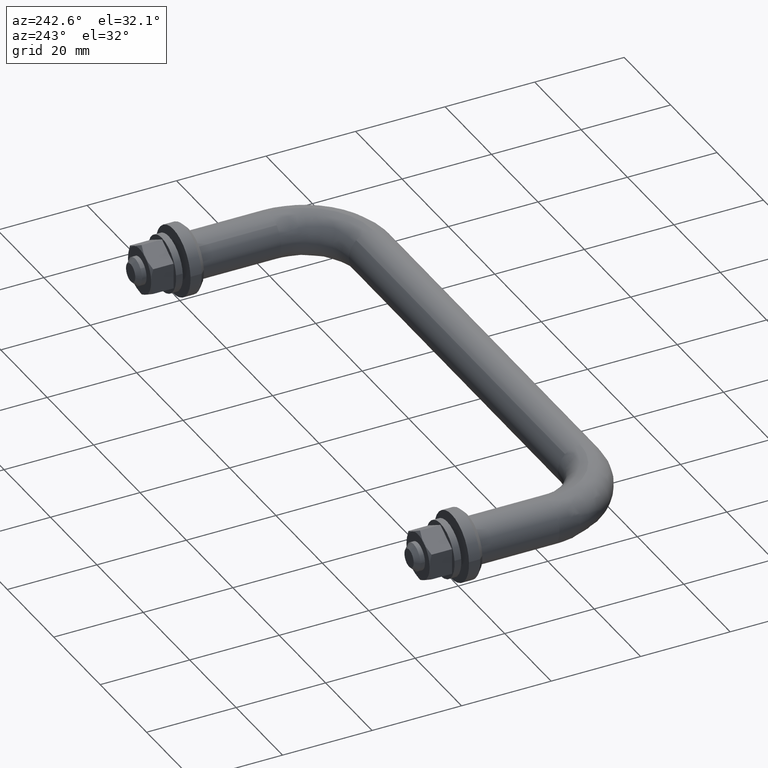
[diagram: clean part render]
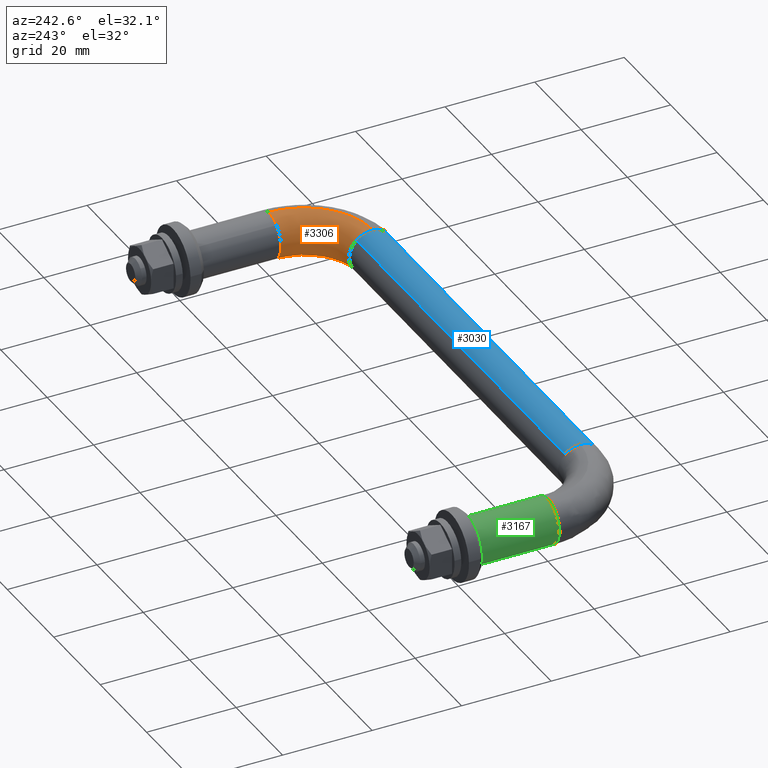
[diagram: same view with three faces highlighted in distinct colors, each labeled with its STEP entity id]
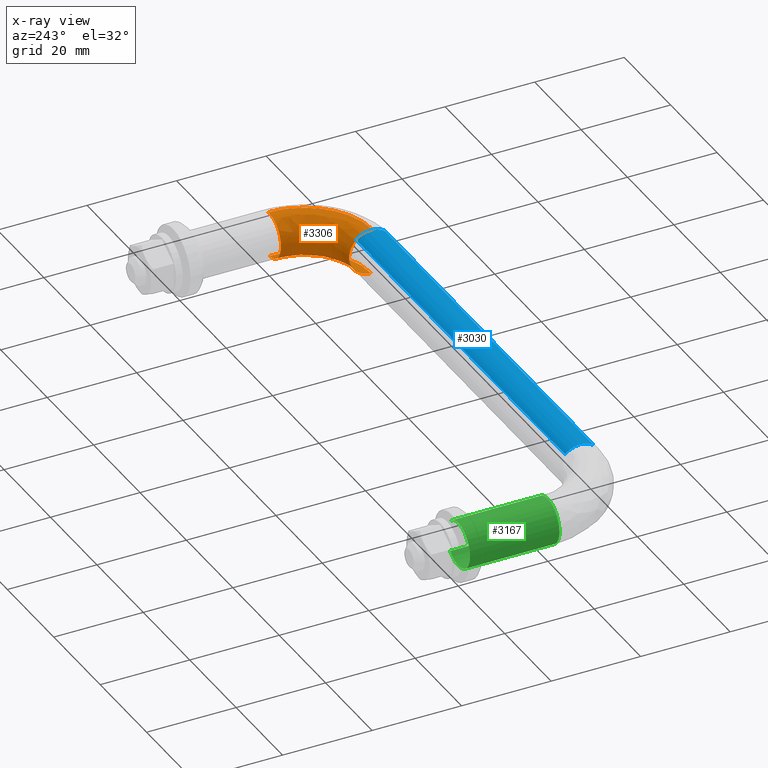
[diagram: x-ray of the same camera — body ghosted, the three highlighted faces saturated]
A machine part, auxiliary view with three faces highlighted in distinct colors.
The next image is the same camera in x-ray (body ghosted, the three faces saturated) — at least one of them is partly hidden behind the body in this view.
Their STEP definitions:

[orange] entity #3306 — the highlighted face is a freeform B-spline surface patch.
#2591=CARTESIAN_POINT('',(119.937169799536900,-20.000000000594721,-4.999605221005929));
#2592=VERTEX_POINT('',#2591);
#2610=CARTESIAN_POINT('',(115.0,-20.0,0.0));
#2611=VERTEX_POINT('',#2610);
#2612=CARTESIAN_POINT('',(115.0,-20.0,0.0));
#2613=CARTESIAN_POINT('',(114.999999999999990,-20.000000000000007,-4.937559647469620));
#2614=CARTESIAN_POINT('',(119.937169799536820,-20.000000000594721,-4.999605221005929));
#2622=(BOUNDED_CURVE()B_SPLINE_CURVE(2,(#2612,#2613,#2614),.UNSPECIFIED.,.F.,.U.)B_SPLINE_CURVE_WITH_KNOTS((3,3),(0.0,0.247784295848113),.UNSPECIFIED.)CURVE()GEOMETRIC_REPRESENTATION_ITEM()RATIONAL_B_SPLINE_CURVE((1.0,0.709702640070486,0.994854295474578))REPRESENTATION_ITEM(''));
#2623=EDGE_CURVE('',#2611,#2592,#2622,.T.);
#2625=CARTESIAN_POINT('',(116.887429168862700,-19.999999999999869,3.913042655165409));
#2626=VERTEX_POINT('',#2625);
#2627=CARTESIAN_POINT('',(116.887429168862600,-19.999999999999869,3.913042655165410));
#2628=CARTESIAN_POINT('',(114.999999999999990,-19.999999999999993,2.411715556397347));
#2629=CARTESIAN_POINT('',(115.0,-20.0,0.0));
#2637=(BOUNDED_CURVE()B_SPLINE_CURVE(2,(#2627,#2628,#2629),.UNSPECIFIED.,.F.,.U.)B_SPLINE_CURVE_WITH_KNOTS((3,3),(0.857863786403068,1.0),.UNSPECIFIED.)CURVE()GEOMETRIC_REPRESENTATION_ITEM()RATIONAL_B_SPLINE_CURVE((0.856305647871386,0.833477067558553,1.0))REPRESENTATION_ITEM(''));
#2638=EDGE_CURVE('',#2626,#2611,#2637,.T.);
#2752=CARTESIAN_POINT('',(120.348666261161990,-20.000000000619941,4.987828368972547));
#2753=VERTEX_POINT('',#2752);
#2754=CARTESIAN_POINT('',(120.348666261161990,-20.000000000619938,4.987828368972547));
#2755=CARTESIAN_POINT('',(120.174545582670320,-20.000000000000004,5.000000000000001));
#2756=CARTESIAN_POINT('',(120.0,-20.0,5.0));
#2757=CARTESIAN_POINT('',(118.253923518848110,-20.0,5.0));
#2758=CARTESIAN_POINT('',(116.887429168862600,-19.999999999999869,3.913042655165410));
#2766=(BOUNDED_CURVE()B_SPLINE_CURVE(2,(#2754,#2755,#2756,#2757,#2758),.UNSPECIFIED.,.F.,.U.)B_SPLINE_CURVE_WITH_KNOTS((3,2,3),(0.737833686308616,0.750000000000000,0.857863786403068),.UNSPECIFIED.)CURVE()GEOMETRIC_REPRESENTATION_ITEM()RATIONAL_B_SPLINE_CURVE((0.972879875907961,0.985746276887346,1.0,0.873629713627995,0.856305647871386))REPRESENTATION_ITEM(''));
#2767=EDGE_CURVE('',#2753,#2626,#2766,.T.);
#2897=CARTESIAN_POINT('',(105.0,-31.622051120767932,3.686388662266402));
#2898=VERTEX_POINT('',#2897);
#2904=CARTESIAN_POINT('',(105.0,-30.0,0.0));
#2905=VERTEX_POINT('',#2904);
#2906=CARTESIAN_POINT('',(104.999999999999990,-31.622051120767932,3.686388662266402));
#2907=CARTESIAN_POINT('',(104.999999999999990,-30.000000000000011,2.200054401981904));
#2908=CARTESIAN_POINT('',(105.0,-30.0,0.0));
#2916=(BOUNDED_CURVE()B_SPLINE_CURVE(2,(#2906,#2907,#2908),.UNSPECIFIED.,.F.,.U.)B_SPLINE_CURVE_WITH_KNOTS((3,3),(0.868415120677811,1.0),.UNSPECIFIED.)CURVE()GEOMETRIC_REPRESENTATION_ITEM()RATIONAL_B_SPLINE_CURVE((0.853959791750278,0.845838724592578,1.0))REPRESENTATION_ITEM(''));
#2917=EDGE_CURVE('',#2898,#2905,#2916,.T.);
#2919=CARTESIAN_POINT('',(105.000000127957610,-34.937169908600652,-4.999605222376536));
#2920=VERTEX_POINT('',#2919);
#2921=CARTESIAN_POINT('',(105.0,-30.0,0.0));
#2922=CARTESIAN_POINT('',(104.999999999999990,-30.000000000000007,-4.937559862907233));
#2923=CARTESIAN_POINT('',(105.000000127957590,-34.937169908600659,-4.999605222376536));
#2931=(BOUNDED_CURVE()B_SPLINE_CURVE(2,(#2921,#2922,#2923),.UNSPECIFIED.,.F.,.U.)B_SPLINE_CURVE_WITH_KNOTS((3,3),(0.0,0.247784303521010),.UNSPECIFIED.)CURVE()GEOMETRIC_REPRESENTATION_ITEM()RATIONAL_B_SPLINE_CURVE((1.0,0.709702631081128,0.994854313134611))REPRESENTATION_ITEM(''));
#2932=EDGE_CURVE('',#2905,#2920,#2931,.T.);
#2966=CARTESIAN_POINT('',(105.000000001064090,-35.348666263059869,4.987828368839876));
#2967=VERTEX_POINT('',#2966);
#2981=CARTESIAN_POINT('',(105.000000001064070,-35.348666263059869,4.987828368839876));
#2982=CARTESIAN_POINT('',(105.000000000000010,-35.174545584575199,5.000000000000001));
#2983=CARTESIAN_POINT('',(105.0,-35.0,5.0));
#2984=CARTESIAN_POINT('',(104.999999999999990,-33.055608026206457,5.0));
#2985=CARTESIAN_POINT('',(104.999999999999990,-31.622051120767932,3.686388662266402));
#2993=(BOUNDED_CURVE()B_SPLINE_CURVE(2,(#2981,#2982,#2983,#2984,#2985),.UNSPECIFIED.,.F.,.U.)B_SPLINE_CURVE_WITH_KNOTS((3,2,3),(0.737833686177734,0.750000000000000,0.868415120677811),.UNSPECIFIED.)CURVE()GEOMETRIC_REPRESENTATION_ITEM()RATIONAL_B_SPLINE_CURVE((0.972879875631133,0.985746276734008,1.0,0.861268056593970,0.853959791750278))REPRESENTATION_ITEM(''));
#2994=EDGE_CURVE('',#2967,#2898,#2993,.T.);
#3243=CARTESIAN_POINT('',(103.932698318354890,-35.311512484592718,4.987828388444838));
#3244=CARTESIAN_POINT('',(121.538757938295280,-36.538757478084690,4.987828388444835));
#3245=CARTESIAN_POINT('',(120.311512454893800,-18.932697892293891,4.987828388444838));
#3246=CARTESIAN_POINT('',(103.942624695050480,-35.169108660711110,4.997807049440652));
#3247=CARTESIAN_POINT('',(121.384940190046290,-36.384939734115918,4.997807049440650));
#3248=CARTESIAN_POINT('',(120.169108631288340,-18.942624272952049,4.997807049440652));
#3249=CARTESIAN_POINT('',(103.952574509055340,-35.026368605134799,4.999605221019078));
#3250=CARTESIAN_POINT('',(121.230759260523510,-36.230758808883344,4.999605221019080));
#3251=CARTESIAN_POINT('',(120.026368575988910,-18.952574090928810,4.999605221019078));
#3252=CARTESIAN_POINT('',(104.300232544353260,-30.038865596961873,5.062435420435842));
#3253=CARTESIAN_POINT('',(115.843498854231530,-30.843498552498289,5.062435420435842));
#3254=CARTESIAN_POINT('',(115.038865577490030,-19.300232265009921,5.062435420435843));
#3255=CARTESIAN_POINT('',(104.304601574050790,-29.976187486442718,0.062830199416764));
#3256=CARTESIAN_POINT('',(115.775796979648650,-30.775796679799292,0.062830199416764));
#3257=CARTESIAN_POINT('',(114.976187467092470,-19.304601296451551,0.062830199416764));
#3258=CARTESIAN_POINT('',(104.308970603748340,-29.913509375923553,-4.936775021602313));
#3259=CARTESIAN_POINT('',(115.708095105065770,-30.708094807100284,-4.936775021602313));
#3260=CARTESIAN_POINT('',(114.913509356694850,-19.308970327893189,-4.936775021602315));
#3261=CARTESIAN_POINT('',(103.961312568450420,-34.901012384096489,-4.999605221019078));
#3262=CARTESIAN_POINT('',(121.095355511357720,-36.095355063485357,-4.999605221019080));
#3263=CARTESIAN_POINT('',(119.901012355193730,-18.961312153812077,-4.999605221019078));
#3271=(BOUNDED_SURFACE()B_SPLINE_SURFACE(2,2,((#3243,#3246,#3249,#3252,#3255,#3258,#3261),(#3244,#3247,#3250,#3253,#3256,#3259,#3262),(#3245,#3248,#3251,#3254,#3257,#3260,#3263)),.UNSPECIFIED.,.F.,.F.,.U.)B_SPLINE_SURFACE_WITH_KNOTS((3,3),(3,2,2,3),(0.0,27.971008545891149),(0.0,0.331370533878608,8.615641781340516,16.899913028802430),.UNSPECIFIED.)GEOMETRIC_REPRESENTATION_ITEM()RATIONAL_B_SPLINE_SURFACE(((0.895729732449210,0.905606490046838,0.916342095240933,0.647951709431553,0.916342095240933,0.647951709431553,0.916342095240933),(0.587800221482116,0.594281596491894,0.601326568744382,0.425202094466791,0.601326568744382,0.425202094466791,0.601326568744382),(0.895729743804760,0.905606501527600,0.916342106857795,0.647951717645915,0.916342106857795,0.647951717645915,0.916342106857795)))REPRESENTATION_ITEM('')SURFACE());
#3272=ORIENTED_EDGE('',*,*,#2767,.T.);
#3273=ORIENTED_EDGE('',*,*,#2638,.T.);
#3274=ORIENTED_EDGE('',*,*,#2623,.T.);
#3275=CARTESIAN_POINT('',(105.000000127957620,-34.937169908600652,-4.999605222376536));
#3276=CARTESIAN_POINT('',(119.937169799393760,-34.937169544668009,-4.999605221019078));
#3277=CARTESIAN_POINT('',(119.937169799536920,-20.000000000594724,-4.999605221005929));
#3285=(BOUNDED_CURVE()B_SPLINE_CURVE(2,(#3275,#3276,#3277),.UNSPECIFIED.,.F.,.U.)B_SPLINE_CURVE_WITH_KNOTS((3,3),(-1.734750773855825,-0.265249208424343),.UNSPECIFIED.)CURVE()GEOMETRIC_REPRESENTATION_ITEM()RATIONAL_B_SPLINE_CURVE((0.889029717267328,0.628638949386523,0.889029723547118))REPRESENTATION_ITEM(''));
#3286=EDGE_CURVE('',#2920,#2592,#3285,.T.);
#3287=ORIENTED_EDGE('',*,*,#3286,.F.);
#3288=ORIENTED_EDGE('',*,*,#2932,.F.);
#3289=ORIENTED_EDGE('',*,*,#2917,.F.);
#3290=ORIENTED_EDGE('',*,*,#2994,.F.);
#3291=CARTESIAN_POINT('',(105.000000001064090,-35.348666263059876,4.987828368839876));
#3292=CARTESIAN_POINT('',(120.348666256637300,-35.348666255749016,4.987828369202159));
#3293=CARTESIAN_POINT('',(120.348666261161970,-20.000000000619941,4.987828368972548));
#3301=(BOUNDED_CURVE()B_SPLINE_CURVE(2,(#3291,#3292,#3293),.UNSPECIFIED.,.F.,.U.)B_SPLINE_CURVE_WITH_KNOTS((3,3),(-1.734750791514324,-0.265249208425538),.UNSPECIFIED.)CURVE()GEOMETRIC_REPRESENTATION_ITEM()RATIONAL_B_SPLINE_CURVE((0.869031711825349,0.614498216572645,0.869031711846182))REPRESENTATION_ITEM(''));
#3302=EDGE_CURVE('',#2967,#2753,#3301,.T.);
#3303=ORIENTED_EDGE('',*,*,#3302,.T.);
#3304=EDGE_LOOP('',(#3272,#3273,#3274,#3287,#3288,#3289,#3290,#3303));
#3305=FACE_OUTER_BOUND('',#3304,.T.);
#3306=ADVANCED_FACE('',(#3305),#3271,.T.);

[blue] entity #3030 — the highlighted face is a freeform B-spline surface patch.
#2813=CARTESIAN_POINT('',(105.000000000448300,-38.040222707736262,3.969514564947689));
#2814=VERTEX_POINT('',#2813);
#2828=CARTESIAN_POINT('',(15.0,-38.040222708103272,3.969514565426509));
#2829=VERTEX_POINT('',#2828);
#2830=CARTESIAN_POINT('',(15.0,-38.040222708103272,3.969514565426509));
#2831=CARTESIAN_POINT('',(105.000000000448300,-38.040222707736262,3.969514564947689));
#2832=QUASI_UNIFORM_CURVE('',1,(#2830,#2831),.UNSPECIFIED.,.F.,.U.);
#2833=EDGE_CURVE('',#2829,#2814,#2832,.T.);
#2882=CARTESIAN_POINT('',(14.999999999824469,-31.622050203416730,3.686387821537513));
#2883=VERTEX_POINT('',#2882);
#2897=CARTESIAN_POINT('',(105.0,-31.622051120767932,3.686388662266402));
#2898=VERTEX_POINT('',#2897);
#2899=CARTESIAN_POINT('',(14.999999999824469,-31.622050203416730,3.686387821537513));
#2900=CARTESIAN_POINT('',(105.0,-31.622051120767932,3.686388662266402));
#2901=QUASI_UNIFORM_CURVE('',1,(#2899,#2900),.UNSPECIFIED.,.F.,.U.);
#2902=EDGE_CURVE('',#2883,#2898,#2901,.T.);
#2952=CARTESIAN_POINT('',(12.749999996253440,-31.622048961921699,3.686386684050619));
#2953=CARTESIAN_POINT('',(12.749999996253441,-34.712458498676909,6.518225283060159));
#2954=CARTESIAN_POINT('',(12.749999996253447,-38.040222708102142,3.969514565427370));
#2955=CARTESIAN_POINT('',(107.306250131250200,-31.622048961921688,3.686386684050619));
#2956=CARTESIAN_POINT('',(107.306250131250220,-34.712458498676895,6.518225283060159));
#2957=CARTESIAN_POINT('',(107.306250131250180,-38.040222708102128,3.969514565427370));
#2965=(BOUNDED_SURFACE()B_SPLINE_SURFACE(2,1,((#2952,#2955),(#2953,#2956),(#2954,#2957)),.UNSPECIFIED.,.F.,.F.,.U.)B_SPLINE_SURFACE_WITH_KNOTS((3,3),(2,2),(0.0,7.272191661774056),(0.0,94.556250134996802),.UNSPECIFIED.)GEOMETRIC_REPRESENTATION_ITEM()RATIONAL_B_SPLINE_SURFACE(((1.0,1.0),(0.742253967444162,0.742253967444162),(0.938140952186599,0.938140952186599)))REPRESENTATION_ITEM('')SURFACE());
#2966=CARTESIAN_POINT('',(105.000000001064090,-35.348666263059869,4.987828368839876));
#2967=VERTEX_POINT('',#2966);
#2968=CARTESIAN_POINT('',(105.000000000448340,-38.040222707736262,3.969514564947690));
#2969=CARTESIAN_POINT('',(105.000000000721220,-36.847439022908283,4.883059025046389));
#2970=CARTESIAN_POINT('',(105.000000001064140,-35.348666263059862,4.987828368839876));
#2978=(BOUNDED_CURVE()B_SPLINE_CURVE(2,(#2968,#2969,#2970),.UNSPECIFIED.,.F.,.U.)B_SPLINE_CURVE_WITH_KNOTS((3,3),(0.644916377166534,0.737833686177733),.UNSPECIFIED.)CURVE()GEOMETRIC_REPRESENTATION_ITEM()RATIONAL_B_SPLINE_CURVE((0.857271138856580,0.874615817626166,0.972879875631132))REPRESENTATION_ITEM(''));
#2979=EDGE_CURVE('',#2814,#2967,#2978,.T.);
#2980=ORIENTED_EDGE('',*,*,#2979,.T.);
#2981=CARTESIAN_POINT('',(105.000000001064070,-35.348666263059869,4.987828368839876));
#2982=CARTESIAN_POINT('',(105.000000000000010,-35.174545584575199,5.000000000000001));
#2983=CARTESIAN_POINT('',(105.0,-35.0,5.0));
#2984=CARTESIAN_POINT('',(104.999999999999990,-33.055608026206457,5.0));
#2985=CARTESIAN_POINT('',(104.999999999999990,-31.622051120767932,3.686388662266402));
#2993=(BOUNDED_CURVE()B_SPLINE_CURVE(2,(#2981,#2982,#2983,#2984,#2985),.UNSPECIFIED.,.F.,.U.)B_SPLINE_CURVE_WITH_KNOTS((3,2,3),(0.737833686177734,0.750000000000000,0.868415120677811),.UNSPECIFIED.)CURVE()GEOMETRIC_REPRESENTATION_ITEM()RATIONAL_B_SPLINE_CURVE((0.972879875631133,0.985746276734008,1.0,0.861268056593970,0.853959791750278))REPRESENTATION_ITEM(''));
#2994=EDGE_CURVE('',#2967,#2898,#2993,.T.);
#2995=ORIENTED_EDGE('',*,*,#2994,.T.);
#2996=ORIENTED_EDGE('',*,*,#2902,.F.);
#2997=CARTESIAN_POINT('',(14.999999999465739,-34.937169799687780,4.999605221007827));
#2998=VERTEX_POINT('',#2997);
#2999=CARTESIAN_POINT('',(14.999999999465743,-34.937169799687780,4.999605221007827));
#3000=CARTESIAN_POINT('',(14.999999999672221,-33.029006949407197,4.975625276488079));
#3001=CARTESIAN_POINT('',(14.999999999824468,-31.622050203416741,3.686387821537513));
#3009=(BOUNDED_CURVE()B_SPLINE_CURVE(2,(#2999,#3000,#3001),.UNSPECIFIED.,.F.,.U.)B_SPLINE_CURVE_WITH_KNOTS((3,3),(0.752215704141269,0.868415158253308),.UNSPECIFIED.)CURVE()GEOMETRIC_REPRESENTATION_ITEM()RATIONAL_B_SPLINE_CURVE((0.994854295499016,0.861131266012613,0.853959787112173))REPRESENTATION_ITEM(''));
#3010=EDGE_CURVE('',#2998,#2883,#3009,.T.);
#3011=ORIENTED_EDGE('',*,*,#3010,.F.);
#3012=CARTESIAN_POINT('',(15.000000000000004,-38.040222708103272,3.969514565426509));
#3013=CARTESIAN_POINT('',(15.0,-36.694753203157383,5.0));
#3014=CARTESIAN_POINT('',(15.0,-35.0,5.0));
#3015=CARTESIAN_POINT('',(14.999999999999998,-34.968583659144976,5.0));
#3016=CARTESIAN_POINT('',(14.999999999465739,-34.937169799687780,4.999605221007827));
#3024=(BOUNDED_CURVE()B_SPLINE_CURVE(2,(#3012,#3013,#3014,#3015,#3016),.UNSPECIFIED.,.F.,.U.)B_SPLINE_CURVE_WITH_KNOTS((3,2,3),(0.644916377221878,0.750000000000000,0.752215704141270),.UNSPECIFIED.)CURVE()GEOMETRIC_REPRESENTATION_ITEM()RATIONAL_B_SPLINE_CURVE((0.857271138877242,0.876886877919749,1.0,0.997404141128501,0.994854295499015))REPRESENTATION_ITEM(''));
#3025=EDGE_CURVE('',#2829,#2998,#3024,.T.);
#3026=ORIENTED_EDGE('',*,*,#3025,.F.);
#3027=ORIENTED_EDGE('',*,*,#2833,.T.);
#3028=EDGE_LOOP('',(#2980,#2995,#2996,#3011,#3026,#3027));
#3029=FACE_OUTER_BOUND('',#3028,.T.);
#3030=ADVANCED_FACE('',(#3029),#2965,.T.);

[green] entity #3167 — the highlighted face is a freeform B-spline surface patch.
#3031=CARTESIAN_POINT('',(3.504546321499253,0.500000000023292,3.566252245770907));
#3032=CARTESIAN_POINT('',(-0.061705924271653,0.500000000023292,7.070798567270160));
#3033=CARTESIAN_POINT('',(-3.566252245770907,0.500000000023291,3.504546321499253));
#3034=CARTESIAN_POINT('',(-7.070798567270160,0.500000000023291,-0.061705924271653));
#3035=CARTESIAN_POINT('',(-3.504546321499253,0.500000000023291,-3.566252245770907));
#3036=CARTESIAN_POINT('',(0.061705924271653,0.500000000023292,-7.070798567270160));
#3037=CARTESIAN_POINT('',(3.566252245770907,0.500000000023292,-3.504546321499253));
#3038=CARTESIAN_POINT('',(3.504546321499256,-20.512500000955502,3.566252245770907));
#3039=CARTESIAN_POINT('',(-0.061705924271651,-20.512500000955491,7.070798567270160));
#3040=CARTESIAN_POINT('',(-3.566252245770904,-20.512500000955502,3.504546321499253));
#3041=CARTESIAN_POINT('',(-7.070798567270158,-20.512500000955491,-0.061705924271653));
#3042=CARTESIAN_POINT('',(-3.504546321499251,-20.512500000955502,-3.566252245770907));
#3043=CARTESIAN_POINT('',(0.061705924271656,-20.512500000955491,-7.070798567270160));
#3044=CARTESIAN_POINT('',(3.566252245770909,-20.512500000955502,-3.504546321499253));
#3052=(BOUNDED_SURFACE()B_SPLINE_SURFACE(2,1,((#3031,#3038),(#3032,#3039),(#3033,#3040),(#3034,#3041),(#3035,#3042),(#3036,#3043),(#3037,#3044)),.UNSPECIFIED.,.F.,.F.,.U.)B_SPLINE_SURFACE_WITH_KNOTS((3,2,2,3),(2,2),(0.0,8.284271247461899,16.568542494923800,24.852813742385688),(0.0,21.012500000978790),.UNSPECIFIED.)GEOMETRIC_REPRESENTATION_ITEM()RATIONAL_B_SPLINE_SURFACE(((1.0,1.0),(0.707106781186548,0.707106781186548),(1.0,1.0),(0.707106781186548,0.707106781186548),(1.0,1.0),(0.707106781186548,0.707106781186548),(1.0,1.0)))REPRESENTATION_ITEM('')SURFACE());
#3053=CARTESIAN_POINT('',(0.062830199724828,-19.999999999986880,4.999605221015209));
#3054=VERTEX_POINT('',#3053);
#3055=CARTESIAN_POINT('',(3.504545881485945,-19.999999999996021,3.566252678125415));
#3056=VERTEX_POINT('',#3055);
#3057=CARTESIAN_POINT('',(0.062830199724828,-19.999999999986873,4.999605221015209));
#3058=CARTESIAN_POINT('',(2.071644357743148,-19.999999999992216,4.974360388713899));
#3059=CARTESIAN_POINT('',(3.504545881485946,-19.999999999996025,3.566252678125415));
#3067=(BOUNDED_CURVE()B_SPLINE_CURVE(2,(#3057,#3058,#3059),.UNSPECIFIED.,.F.,.U.)B_SPLINE_CURVE_WITH_KNOTS((3,3),(0.752215704099945,0.873683205178172),.UNSPECIFIED.)CURVE()GEOMETRIC_REPRESENTATION_ITEM()RATIONAL_B_SPLINE_CURVE((0.994854295594130,0.855068765981151,0.853569642170475))REPRESENTATION_ITEM(''));
#3068=EDGE_CURVE('',#3054,#3056,#3067,.T.);
#3069=ORIENTED_EDGE('',*,*,#3068,.T.);
#3070=CARTESIAN_POINT('',(3.504545999161051,5.551115E-017,3.566252562531720));
#3071=VERTEX_POINT('',#3070);
#3072=CARTESIAN_POINT('',(3.504545999161051,5.551115E-017,3.566252562531720));
#3073=CARTESIAN_POINT('',(3.504545881485945,-19.999999999996021,3.566252678125415));
#3074=QUASI_UNIFORM_CURVE('',1,(#3072,#3073),.UNSPECIFIED.,.F.,.U.);
#3075=EDGE_CURVE('',#3071,#3056,#3074,.T.);
#3076=ORIENTED_EDGE('',*,*,#3075,.F.);
#3077=CARTESIAN_POINT('',(-5.0,0.0,0.0));
#3078=VERTEX_POINT('',#3077);
#3079=CARTESIAN_POINT('',(-5.0,0.0,0.0));
#3080=CARTESIAN_POINT('',(-5.000000000000001,0.0,5.000000000000001));
#3081=CARTESIAN_POINT('',(0.0,0.0,5.0));
#3082=CARTESIAN_POINT('',(2.045553479570108,0.0,5.000000000000001));
#3083=CARTESIAN_POINT('',(3.504545999161051,5.551115E-017,3.566252562531720));
#3091=(BOUNDED_CURVE()B_SPLINE_CURVE(2,(#3079,#3080,#3081,#3082,#3083),.UNSPECIFIED.,.F.,.U.)B_SPLINE_CURVE_WITH_KNOTS((3,2,3),(0.500000000000000,0.750000000000000,0.873683215132095),.UNSPECIFIED.)CURVE()GEOMETRIC_REPRESENTATION_ITEM()RATIONAL_B_SPLINE_CURVE((1.0,0.707106781186548,1.0,0.855096100027056,0.853569641924778))REPRESENTATION_ITEM(''));
#3092=EDGE_CURVE('',#3078,#3071,#3091,.T.);
#3093=ORIENTED_EDGE('',*,*,#3092,.F.);
#3094=CARTESIAN_POINT('',(3.566252367963553,5.551115E-017,-3.504546197155106));
#3095=VERTEX_POINT('',#3094);
#3096=CARTESIAN_POINT('',(3.566252367963553,5.551115E-017,-3.504546197155106));
#3097=CARTESIAN_POINT('',(2.096674213781681,0.0,-5.0));
#3098=CARTESIAN_POINT('',(0.0,0.0,-5.0));
#3099=CARTESIAN_POINT('',(-5.000000000000001,0.0,-5.000000000000001));
#3100=CARTESIAN_POINT('',(-5.0,0.0,0.0));
#3108=(BOUNDED_CURVE()B_SPLINE_CURVE(2,(#3096,#3097,#3098,#3099,#3100),.UNSPECIFIED.,.F.,.U.)B_SPLINE_CURVE_WITH_KNOTS((3,2,3),(0.123683231886692,0.250000000000000,0.500000000000000),.UNSPECIFIED.)CURVE()GEOMETRIC_REPRESENTATION_ITEM()RATIONAL_B_SPLINE_CURVE((0.853569641511221,0.852010700788723,1.0,0.707106781186548,1.0))REPRESENTATION_ITEM(''));
#3109=EDGE_CURVE('',#3095,#3078,#3108,.T.);
#3110=ORIENTED_EDGE('',*,*,#3109,.F.);
#3111=CARTESIAN_POINT('',(3.566252369489986,-19.999999999999989,-3.504546195601798));
#3112=VERTEX_POINT('',#3111);
#3113=CARTESIAN_POINT('',(3.566252367963553,5.551115E-017,-3.504546197155106));
#3114=CARTESIAN_POINT('',(3.566252369489986,-19.999999999999989,-3.504546195601798));
#3115=QUASI_UNIFORM_CURVE('',1,(#3113,#3114),.UNSPECIFIED.,.F.,.U.);
#3116=EDGE_CURVE('',#3095,#3112,#3115,.T.);
#3117=ORIENTED_EDGE('',*,*,#3116,.T.);
#3118=CARTESIAN_POINT('',(-0.348666262618661,-20.000000000931621,-4.987828368870718));
#3119=VERTEX_POINT('',#3118);
#3120=CARTESIAN_POINT('',(3.566252369489986,-20.0,-3.504546195601798));
#3121=CARTESIAN_POINT('',(2.096674216342415,-20.000000000000004,-5.000000000000001));
#3122=CARTESIAN_POINT('',(2.449213E-015,-20.0,-5.0));
#3123=CARTESIAN_POINT('',(-0.174545584132372,-20.000000000000004,-5.0));
#3124=CARTESIAN_POINT('',(-0.348666262618661,-20.000000000931617,-4.987828368870718));
#3132=(BOUNDED_CURVE()B_SPLINE_CURVE(2,(#3120,#3121,#3122,#3123,#3124),.UNSPECIFIED.,.F.,.U.)B_SPLINE_CURVE_WITH_KNOTS((3,2,3),(0.123683231755248,0.250000000000000,0.262166313791840),.UNSPECIFIED.)CURVE()GEOMETRIC_REPRESENTATION_ITEM()RATIONAL_B_SPLINE_CURVE((0.853569641514465,0.852010700634727,1.0,0.985746276769654,0.972879875695487))REPRESENTATION_ITEM(''));
#3133=EDGE_CURVE('',#3112,#3119,#3132,.T.);
#3134=ORIENTED_EDGE('',*,*,#3133,.T.);
#3135=CARTESIAN_POINT('',(-4.999999999999997,-20.0,0.0));
#3136=VERTEX_POINT('',#3135);
#3137=CARTESIAN_POINT('',(-0.348666262618661,-20.000000000931625,-4.987828368870718));
#3138=CARTESIAN_POINT('',(-4.999999999999997,-20.0,-4.662684227446723));
#3139=CARTESIAN_POINT('',(-4.999999999999997,-20.0,0.0));
#3147=(BOUNDED_CURVE()B_SPLINE_CURVE(2,(#3137,#3138,#3139),.UNSPECIFIED.,.F.,.U.)B_SPLINE_CURVE_WITH_KNOTS((3,3),(0.262166313791840,0.500000000000000),.UNSPECIFIED.)CURVE()GEOMETRIC_REPRESENTATION_ITEM()RATIONAL_B_SPLINE_CURVE((0.972879875695487,0.721360504416894,1.0))REPRESENTATION_ITEM(''));
#3148=EDGE_CURVE('',#3119,#3136,#3147,.T.);
#3149=ORIENTED_EDGE('',*,*,#3148,.T.);
#3150=CARTESIAN_POINT('',(-4.999999999999997,-20.0,0.0));
#3151=CARTESIAN_POINT('',(-4.999999999999997,-19.999999999999996,5.000000000000001));
#3152=CARTESIAN_POINT('',(2.449213E-015,-20.0,5.0));
#3153=CARTESIAN_POINT('',(0.031416340267555,-19.999999999999996,5.0));
#3154=CARTESIAN_POINT('',(0.062830199724828,-19.999999999986876,4.999605221015209));
#3162=(BOUNDED_CURVE()B_SPLINE_CURVE(2,(#3150,#3151,#3152,#3153,#3154),.UNSPECIFIED.,.F.,.U.)B_SPLINE_CURVE_WITH_KNOTS((3,2,3),(0.500000000000000,0.750000000000000,0.752215704099945),.UNSPECIFIED.)CURVE()GEOMETRIC_REPRESENTATION_ITEM()RATIONAL_B_SPLINE_CURVE((1.0,0.707106781186548,1.0,0.997404141176916,0.994854295594129))REPRESENTATION_ITEM(''));
#3163=EDGE_CURVE('',#3136,#3054,#3162,.T.);
#3164=ORIENTED_EDGE('',*,*,#3163,.T.);
#3165=EDGE_LOOP('',(#3069,#3076,#3093,#3110,#3117,#3134,#3149,#3164));
#3166=FACE_OUTER_BOUND('',#3165,.T.);
#3167=ADVANCED_FACE('',(#3166),#3052,.T.);